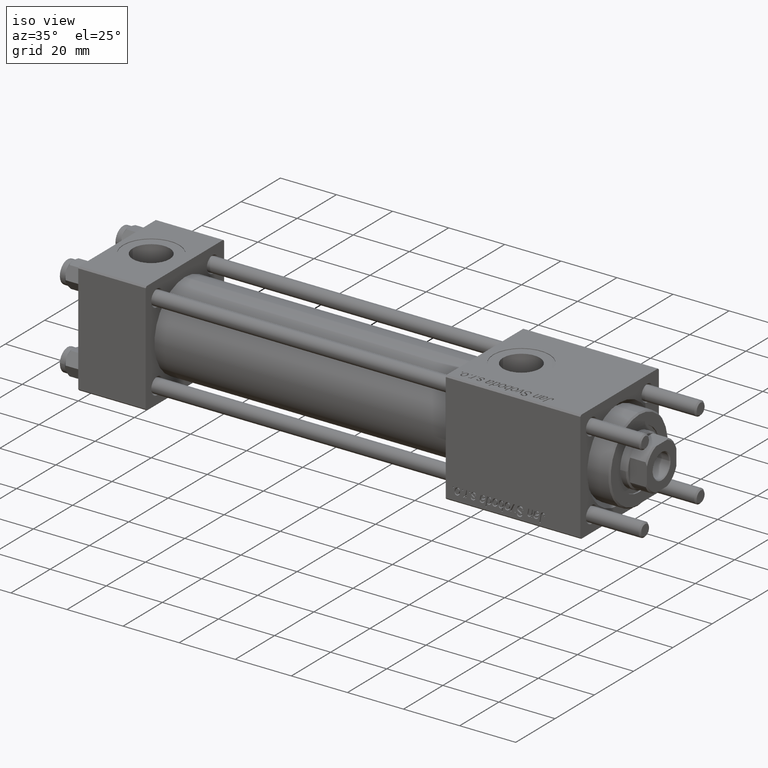
[diagram: clean part render]
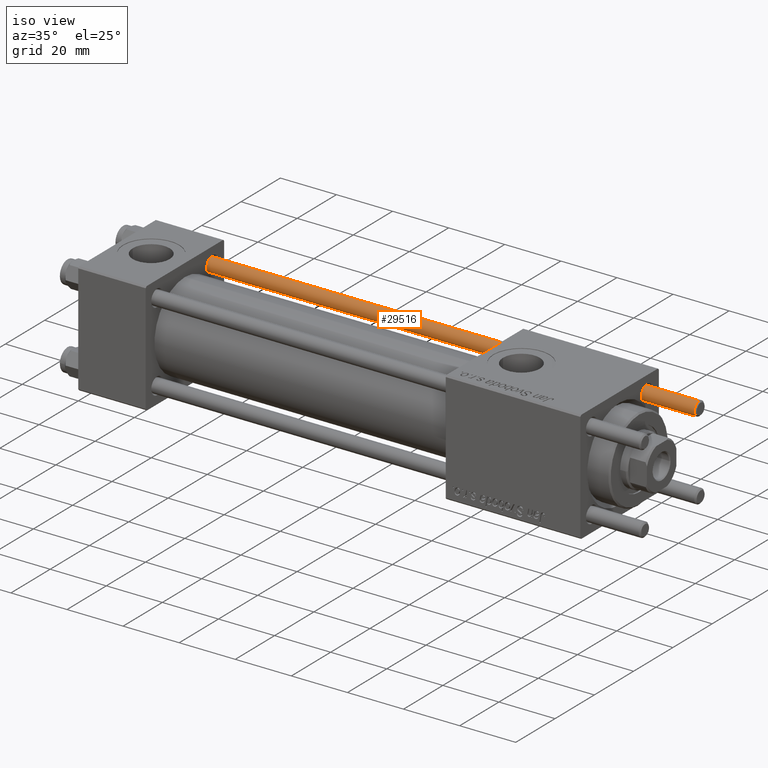
[diagram: same view with one face highlighted and labeled with its STEP entity id]
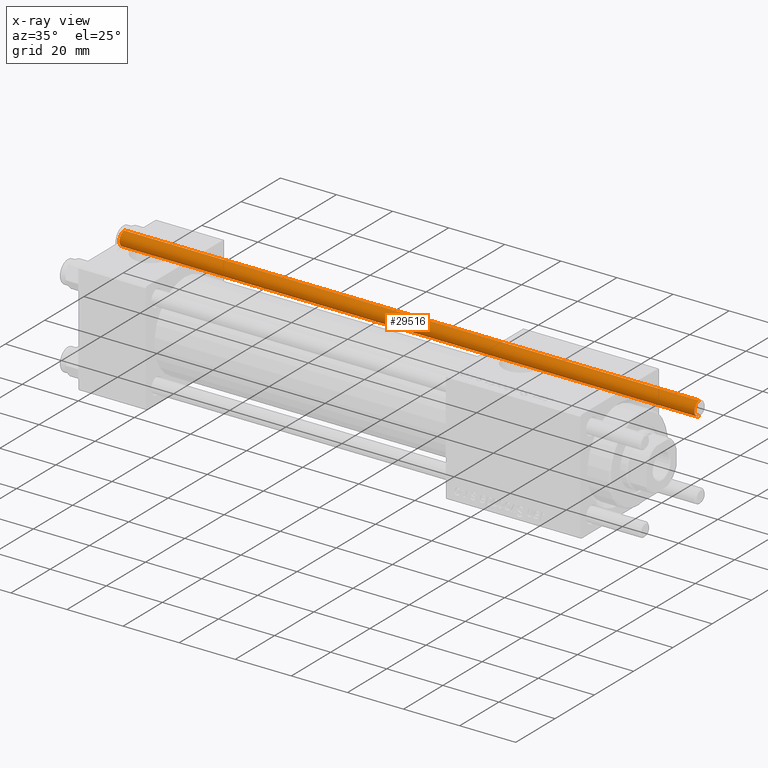
[diagram: x-ray of the same camera — body ghosted, the highlighted face saturated]
A machine part, iso view. The second image highlights one B-rep face of the part: STEP entity #29516.
The next image is the same camera in x-ray: the body ghosted, the highlighted face saturated — about 0% of this face is hidden behind the body in this view.
In plain terms, the highlighted cylindrical surface (edge-blend (fillet) strip) has radius 2.5 mm, axis along (1, -0, -0).
Its self-contained STEP definition (entity closure, byte-faithful):
#197 = DIRECTION ( 'NONE',  ( 1.000000000000000000, 0.000000000000000000, 0.000000000000000000 ) ) ;
#1072 = EDGE_CURVE ( 'NONE', #20473, #35746, #29631, .T. ) ;
#2205 = ORIENTED_EDGE ( 'NONE', *, *, #46160, .T. ) ;
#2420 = CYLINDRICAL_SURFACE ( 'NONE', #40248, 2.500000000000000000 ) ;
#2725 = VERTEX_POINT ( 'NONE', #9173 ) ;
#3473 = LINE ( 'NONE', #20976, #17582 ) ;
#3825 = CARTESIAN_POINT ( 'NONE',  ( 2.500000000000000000, 3.061616997868383141E-16, 0.4999999999999726885 ) ) ;
#4908 = AXIS2_PLACEMENT_3D ( 'NONE', #22278, #43771, #197 ) ;
#7192 = VERTEX_POINT ( 'NONE', #3825 ) ;
#9173 = CARTESIAN_POINT ( 'NONE',  ( -2.500000000000000000, 0.000000000000000000, 0.4999999999999726885 ) ) ;
#12034 = CIRCLE ( 'NONE', #34986, 2.500000000000000000 ) ;
#12130 = CARTESIAN_POINT ( 'NONE',  ( 0.000000000000000000, 0.000000000000000000, 206.0000000000000000 ) ) ;
#12995 = CARTESIAN_POINT ( 'NONE',  ( -2.500000000000000000, 0.000000000000000000, 205.5000000000000284 ) ) ;
#13242 = DIRECTION ( 'NONE',  ( -0.000000000000000000, -0.000000000000000000, -1.000000000000000000 ) ) ;
#13285 = ORIENTED_EDGE ( 'NONE', *, *, #35948, .F. ) ;
#14006 = EDGE_LOOP ( 'NONE', ( #13285, #36228, #2205, #47191 ) ) ;
#16080 = DIRECTION ( 'NONE',  ( 1.000000000000000000, 0.000000000000000000, 0.000000000000000000 ) ) ;
#17582 = VECTOR ( 'NONE', #38462, 1000.000000000000000 ) ;
#18668 = CARTESIAN_POINT ( 'NONE',  ( -2.500000000000000000, 0.000000000000000000, 206.0000000000000000 ) ) ;
#20473 = VERTEX_POINT ( 'NONE', #40062 ) ;
#20976 = CARTESIAN_POINT ( 'NONE',  ( 2.500000000000000000, 3.061616997868383141E-16, 206.0000000000000000 ) ) ;
#22278 = CARTESIAN_POINT ( 'NONE',  ( 0.000000000000000000, 0.000000000000000000, 205.5000000000000284 ) ) ;
#27293 = LINE ( 'NONE', #18668, #56160 ) ;
#29516 = ADVANCED_FACE ( 'NONE', ( #33950 ), #2420, .T. ) ;
#29631 = CIRCLE ( 'NONE', #4908, 2.500000000000000000 ) ;
#33101 = DIRECTION ( 'NONE',  ( -1.000000000000000000, 0.000000000000000000, 0.000000000000000000 ) ) ;
#33950 = FACE_OUTER_BOUND ( 'NONE', #14006, .T. ) ;
#34986 = AXIS2_PLACEMENT_3D ( 'NONE', #42452, #37612, #16080 ) ;
#35746 = VERTEX_POINT ( 'NONE', #12995 ) ;
#35948 = EDGE_CURVE ( 'NONE', #20473, #7192, #3473, .T. ) ;
#36228 = ORIENTED_EDGE ( 'NONE', *, *, #1072, .T. ) ;
#37414 = DIRECTION ( 'NONE',  ( -0.000000000000000000, -0.000000000000000000, -1.000000000000000000 ) ) ;
#37612 = DIRECTION ( 'NONE',  ( -0.000000000000000000, -0.000000000000000000, 1.000000000000000000 ) ) ;
#38462 = DIRECTION ( 'NONE',  ( -0.000000000000000000, -0.000000000000000000, -1.000000000000000000 ) ) ;
#39576 = EDGE_CURVE ( 'NONE', #2725, #7192, #12034, .T. ) ;
#40062 = CARTESIAN_POINT ( 'NONE',  ( 2.500000000000000000, 3.061616997868383141E-16, 205.5000000000000284 ) ) ;
#40248 = AXIS2_PLACEMENT_3D ( 'NONE', #12130, #37414, #33101 ) ;
#42452 = CARTESIAN_POINT ( 'NONE',  ( 0.000000000000000000, 0.000000000000000000, 0.4999999999999726885 ) ) ;
#43771 = DIRECTION ( 'NONE',  ( 0.000000000000000000, 0.000000000000000000, -1.000000000000000000 ) ) ;
#46160 = EDGE_CURVE ( 'NONE', #35746, #2725, #27293, .T. ) ;
#47191 = ORIENTED_EDGE ( 'NONE', *, *, #39576, .T. ) ;
#56160 = VECTOR ( 'NONE', #13242, 1000.000000000000000 ) ;